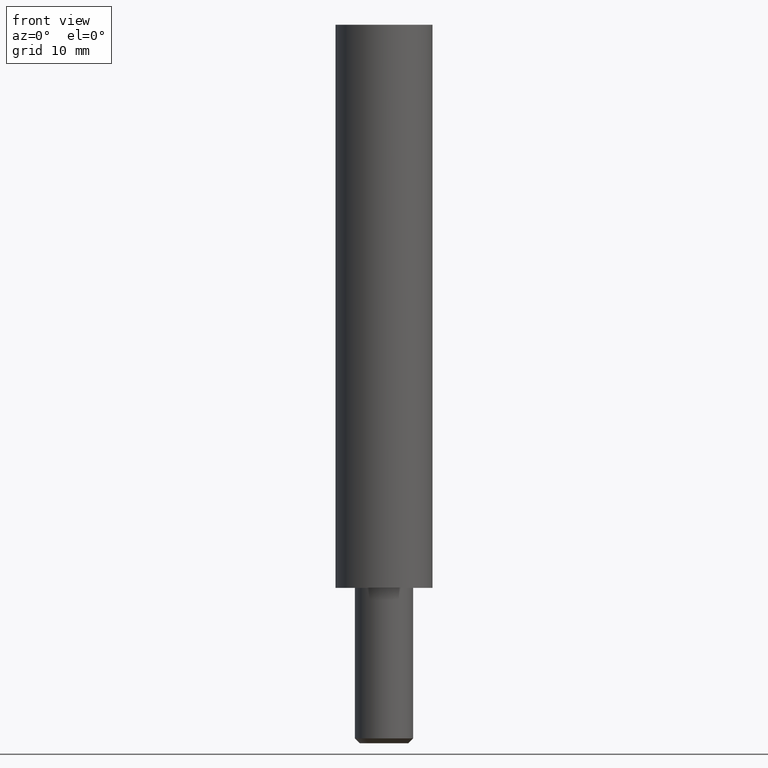
[diagram: clean part render]
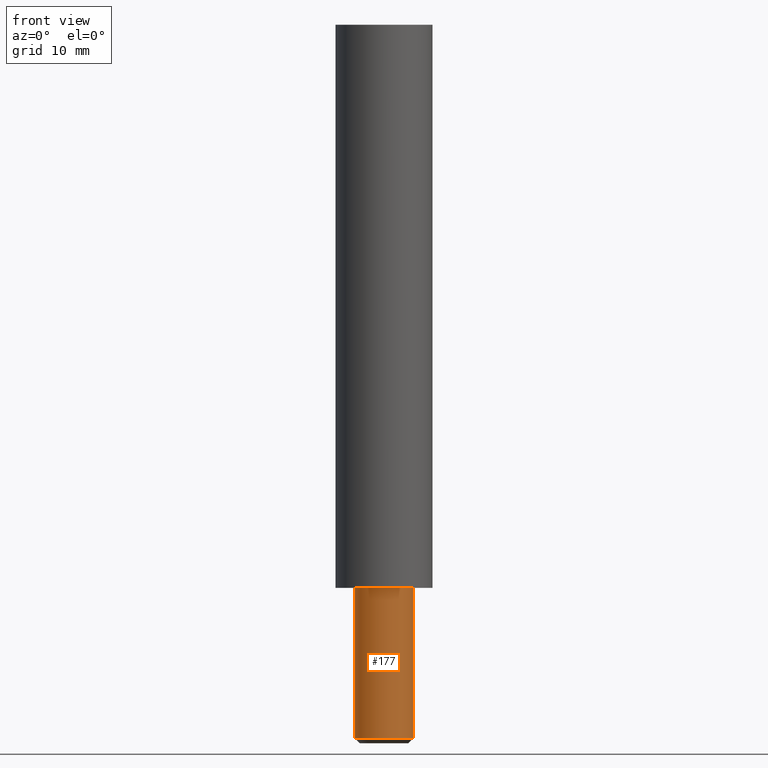
[diagram: same view with one face highlighted and labeled with its STEP entity id]
A machine part, front view. The second image highlights one B-rep face of the part: STEP entity #177.
In plain terms, the highlighted cylindrical surface (bore or boss wall) has radius 3 mm, axis along (0, -0, -1).
Its self-contained STEP definition (entity closure, byte-faithful):
#122=CARTESIAN_POINT('',(3.0,3.944305E-031,0.0));
#123=VERTEX_POINT('',#122);
#124=CARTESIAN_POINT('',(-3.0,3.944305E-031,0.0));
#125=VERTEX_POINT('',#124);
#126=CARTESIAN_POINT('',(0.0,3.944305E-031,0.0));
#127=DIRECTION('',(0.0,-6.123234E-017,-1.0));
#128=DIRECTION('',(-1.0,0.0,0.0));
#129=AXIS2_PLACEMENT_3D('',#126,#127,#128);
#130=CIRCLE('',#129,3.0);
#131=EDGE_CURVE('',#123,#125,#130,.T.);
#133=CARTESIAN_POINT('',(0.0,3.944305E-031,0.0));
#134=DIRECTION('',(0.0,-6.123234E-017,-1.0));
#135=DIRECTION('',(-1.0,0.0,0.0));
#136=AXIS2_PLACEMENT_3D('',#133,#134,#135);
#137=CIRCLE('',#136,3.0);
#138=EDGE_CURVE('',#125,#123,#137,.T.);
#143=CARTESIAN_POINT('',(0.0,3.944305E-031,0.0));
#144=DIRECTION('',(0.0,-6.123234E-017,-1.0));
#145=DIRECTION('',(-1.0,0.0,0.0));
#146=AXIS2_PLACEMENT_3D('',#143,#144,#145);
#147=CYLINDRICAL_SURFACE('',#146,3.0);
#148=ORIENTED_EDGE('',*,*,#138,.T.);
#149=ORIENTED_EDGE('',*,*,#131,.T.);
#150=CARTESIAN_POINT('',(-3.0,-9.491013E-016,-15.500000000000000));
#151=VERTEX_POINT('',#150);
#152=CARTESIAN_POINT('',(-3.0,3.944305E-031,0.0));
#153=DIRECTION('',(0.0,0.0,-1.0));
#154=VECTOR('',#153,15.500000000000000);
#155=LINE('',#152,#154);
#156=EDGE_CURVE('',#125,#151,#155,.T.);
#157=ORIENTED_EDGE('',*,*,#156,.T.);
#158=CARTESIAN_POINT('',(3.0,-9.491013E-016,-15.500000000000000));
#159=VERTEX_POINT('',#158);
#160=CARTESIAN_POINT('',(0.0,-9.491013E-016,-15.500000000000000));
#161=DIRECTION('',(0.0,-6.123234E-017,-1.0));
#162=DIRECTION('',(-1.0,0.0,0.0));
#163=AXIS2_PLACEMENT_3D('',#160,#161,#162);
#164=CIRCLE('',#163,3.0);
#165=EDGE_CURVE('',#159,#151,#164,.T.);
#166=ORIENTED_EDGE('',*,*,#165,.F.);
#167=CARTESIAN_POINT('',(0.0,-9.491013E-016,-15.500000000000000));
#168=DIRECTION('',(0.0,-6.123234E-017,-1.0));
#169=DIRECTION('',(-1.0,0.0,0.0));
#170=AXIS2_PLACEMENT_3D('',#167,#168,#169);
#171=CIRCLE('',#170,3.0);
#172=EDGE_CURVE('',#151,#159,#171,.T.);
#173=ORIENTED_EDGE('',*,*,#172,.F.);
#174=ORIENTED_EDGE('',*,*,#156,.F.);
#175=EDGE_LOOP('',(#148,#149,#157,#166,#173,#174));
#176=FACE_OUTER_BOUND('',#175,.T.);
#177=ADVANCED_FACE('',(#176),#147,.T.);